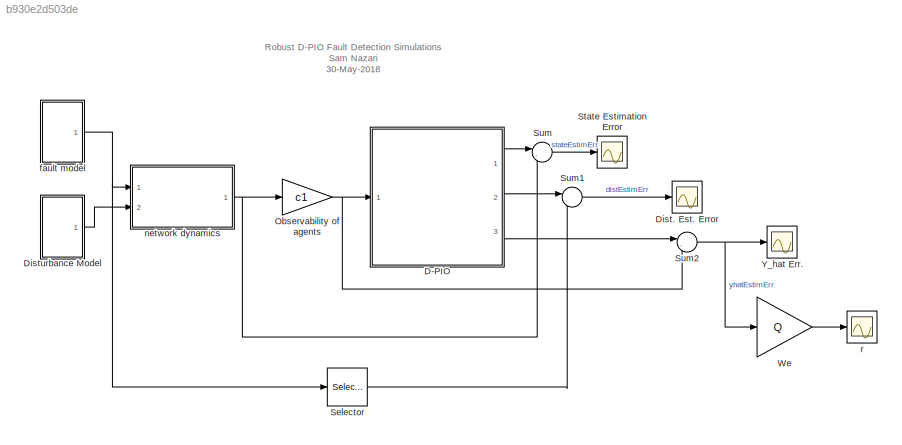
MODEL slx_b930e2d503de
KIND model
CONFIG AbsTol = auto
CONFIG EnableMultiTasking = on
CONFIG FixedStep = auto
CONFIG MaxStep = 10e-5
CONFIG MinStep = auto
CONFIG RelTol = 1e-3
CONFIG SampleTimeConstraint = Unconstrained
CONFIG Solver = ode45
CONFIG SolverName = ode45
CONFIG StartTime = 0.0
CONFIG StopTime = TSIM
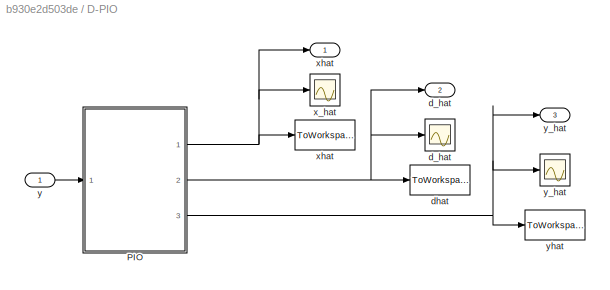
BLOCK [SubSystem] D-PIO
  Ports = [1, 3]
  RequestExecContextInheritance = off
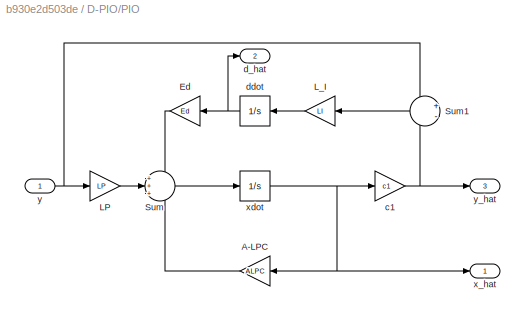
BLOCK [SubSystem] D-PIO/PIO
  Ports = [1, 3]
  RequestExecContextInheritance = off
BLOCK [Gain] D-PIO/PIO/A-LPC
  Gain = ALPC
  Multiplication = Matrix(K*u)
  OutDataTypeStr = Inherit: Inherit via internal rule
  ParamDataTypeStr = Inherit: Inherit via internal rule
  SaturateOnIntegerOverflow = off
BLOCK [Gain] D-PIO/PIO/Ed
  Gain = Ed
  Multiplication = Matrix(K*u)
  OutDataTypeStr = Inherit: Inherit via internal rule
  ParamDataTypeStr = Inherit: Inherit via internal rule
  SaturateOnIntegerOverflow = off
BLOCK [Gain] D-PIO/PIO/LP
  Gain = LP
  Multiplication = Matrix(K*u)
  OutDataTypeStr = Inherit: Inherit via internal rule
  ParamDataTypeStr = Inherit: Inherit via internal rule
  SaturateOnIntegerOverflow = off
BLOCK [Gain] D-PIO/PIO/L_I
  Gain = LI
  Multiplication = Matrix(K*u)
  OutDataTypeStr = Inherit: Inherit via internal rule
  ParamDataTypeStr = Inherit: Inherit via internal rule
  SaturateOnIntegerOverflow = off
BLOCK [Sum] D-PIO/PIO/Sum
  IconShape = round
  InputSameDT = off
  Inputs = +++
  OutDataTypeStr = Inherit: Inherit via internal rule
  Ports = [3, 1]
  SaturateOnIntegerOverflow = off
BLOCK [Sum] D-PIO/PIO/Sum1
  IconShape = round
  InputSameDT = off
  Inputs = +-
  OutDataTypeStr = Inherit: Inherit via internal rule
  Ports = [2, 1]
  SaturateOnIntegerOverflow = off
BLOCK [Gain] D-PIO/PIO/c1
  Gain = c1
  Multiplication = Matrix(K*u)
  OutDataTypeStr = Inherit: Inherit via internal rule
  ParamDataTypeStr = Inherit: Inherit via internal rule
  SaturateOnIntegerOverflow = off
BLOCK [Outport] D-PIO/PIO/d_hat
  IconDisplay = Port number
  Port = 2
BLOCK [Integrator] D-PIO/PIO/ddot
  InitialCondition = ddot0
  Ports = [1, 1]
BLOCK [Outport] D-PIO/PIO/x_hat
  IconDisplay = Port number
BLOCK [Integrator] D-PIO/PIO/xdot
  InitialCondition = xdot0
  Ports = [1, 1]
BLOCK [Inport] D-PIO/PIO/y
  IconDisplay = Port number
BLOCK [Outport] D-PIO/PIO/y_hat
  IconDisplay = Port number
  Port = 3
BLOCK [Scope] D-PIO/d_hat
  Floating = off
  NumInputPorts = 1
  Ports = [1]
  ScopeSpecificationString = Simulink.scopes.TimeScopeBlockCfg('CurrentConfiguration', extmgr.ConfigurationSet(extmgr.Configuration('Core','General UI',true),extmgr.Configuration('Core','Source UI',true),extmgr.Configuration('Sources','WiredSimulink',true,'DataLoggingVariableName','ScopeData2'),extmgr.Configuration('Visuals','Time Domain',true,'SerializedDisplays',{struct('MinYLimReal','-2.00585','MaxYLimReal','18.05264','YLa...<+1417ch>
BLOCK [Outport] D-PIO/d_hat 
  IconDisplay = Port number
  Port = 2
BLOCK [ToWorkspace] D-PIO/dhat
  FixptAsFi = on
  MaxDataPoints = inf
  Ports = [1]
  SampleTime = -1
  Save2DSignal = 3-D array (concatenate along third dimension)
  SaveFormat = Timeseries
  VariableName = dhat
BLOCK [Scope] D-PIO/x_hat 
  Floating = off
  NumInputPorts = 1
  Ports = [1]
  ScopeSpecificationString = Simulink.scopes.TimeScopeBlockCfg('CurrentConfiguration', extmgr.ConfigurationSet(extmgr.Configuration('Core','General UI',true),extmgr.Configuration('Core','Source UI',true),extmgr.Configuration('Sources','WiredSimulink',true,'DataLoggingVariableName','ScopeData1'),extmgr.Configuration('Visuals','Time Domain',true,'SerializedDisplays',{struct('MinYLimReal','-2.00314','MaxYLimReal','17.19994','YLa...<+1459ch>
BLOCK [ToWorkspace] D-PIO/xhat
  FixptAsFi = on
  MaxDataPoints = inf
  Ports = [1]
  SampleTime = -1
  Save2DSignal = 3-D array (concatenate along third dimension)
  SaveFormat = Timeseries
  VariableName = xhat
BLOCK [Outport] D-PIO/xhat 
  IconDisplay = Port number
BLOCK [Inport] D-PIO/y
  IconDisplay = Port number
BLOCK [Scope] D-PIO/y_hat
  Floating = off
  NumInputPorts = 1
  Ports = [1]
  ScopeSpecificationString = Simulink.scopes.TimeScopeBlockCfg('CurrentConfiguration', extmgr.ConfigurationSet(extmgr.Configuration('Core','General UI',true),extmgr.Configuration('Core','Source UI',true),extmgr.Configuration('Sources','WiredSimulink',true,'DataLoggingVariableName','ScopeData3'),extmgr.Configuration('Visuals','Time Domain',true,'SerializedDisplays',{struct('MinYLimReal','-2.00314','MaxYLimReal','17.19994','YLa...<+1390ch>
BLOCK [Outport] D-PIO/y_hat 
  IconDisplay = Port number
  Port = 3
BLOCK [ToWorkspace] D-PIO/yhat
  FixptAsFi = on
  MaxDataPoints = inf
  Ports = [1]
  SampleTime = -1
  Save2DSignal = 3-D array (concatenate along third dimension)
  SaveFormat = Timeseries
  VariableName = yhat
BLOCK [Scope] Dist. Est. Error
  Floating = off
  NumInputPorts = 1
  Ports = [1]
  ScopeSpecificationString = Simulink.scopes.TimeScopeBlockCfg('CurrentConfiguration', extmgr.ConfigurationSet(extmgr.Configuration('Core','General UI',true),extmgr.Configuration('Core','Source UI',true),extmgr.Configuration('Sources','WiredSimulink',true,'DataLoggingVariableName','distEstError','DataLoggingSaveFormat','Array'),extmgr.Configuration('Visuals','Time Domain',true,'SerializedDisplays',{struct('MinYLimReal','-6.13...<+1489ch>
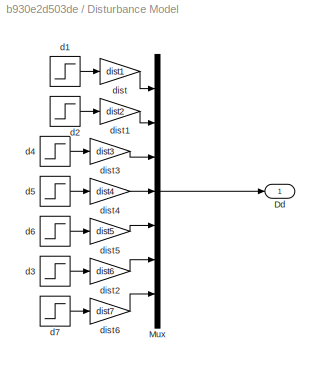
BLOCK [SubSystem] Disturbance Model
  Ports = [0, 1]
  RequestExecContextInheritance = off
BLOCK [Outport] Disturbance Model/Dd
  IconDisplay = Port number
BLOCK [Mux] Disturbance Model/Mux
  DisplayOption = bar
  Inputs = 7
  Ports = [7, 1]
BLOCK [Step] Disturbance Model/d1
  After = d1Val
  SampleTime = dt1
BLOCK [Step] Disturbance Model/d2
  After = d2Val
  SampleTime = dt2
BLOCK [Step] Disturbance Model/d3
  After = d6Val
  SampleTime = dt6
BLOCK [Step] Disturbance Model/d4
  After = d3Val
  SampleTime = dt3
BLOCK [Step] Disturbance Model/d5
  After = d4Val
  SampleTime = dt4
BLOCK [Step] Disturbance Model/d6
  After = d5Val
  SampleTime = dt5
BLOCK [Step] Disturbance Model/d7
  After = d7Val
  SampleTime = dt7
BLOCK [Gain] Disturbance Model/dist
  Gain = dist1
  Multiplication = Matrix(K*u)
  OutDataTypeStr = Inherit: Inherit via internal rule
  ParamDataTypeStr = Inherit: Inherit via internal rule
  SaturateOnIntegerOverflow = off
BLOCK [Gain] Disturbance Model/dist1
  Gain = dist2
  Multiplication = Matrix(K*u)
  OutDataTypeStr = Inherit: Inherit via internal rule
  ParamDataTypeStr = Inherit: Inherit via internal rule
  SaturateOnIntegerOverflow = off
BLOCK [Gain] Disturbance Model/dist2
  Gain = dist6
  Multiplication = Matrix(K*u)
  OutDataTypeStr = Inherit: Inherit via internal rule
  ParamDataTypeStr = Inherit: Inherit via internal rule
  SaturateOnIntegerOverflow = off
BLOCK [Gain] Disturbance Model/dist3
  Gain = dist3
  Multiplication = Matrix(K*u)
  OutDataTypeStr = Inherit: Inherit via internal rule
  ParamDataTypeStr = Inherit: Inherit via internal rule
  SaturateOnIntegerOverflow = off
BLOCK [Gain] Disturbance Model/dist4
  Gain = dist4
  Multiplication = Matrix(K*u)
  OutDataTypeStr = Inherit: Inherit via internal rule
  ParamDataTypeStr = Inherit: Inherit via internal rule
  SaturateOnIntegerOverflow = off
BLOCK [Gain] Disturbance Model/dist5
  Gain = dist5
  Multiplication = Matrix(K*u)
  OutDataTypeStr = Inherit: Inherit via internal rule
  ParamDataTypeStr = Inherit: Inherit via internal rule
  SaturateOnIntegerOverflow = off
BLOCK [Gain] Disturbance Model/dist6
  Gain = dist7
  Multiplication = Matrix(K*u)
  OutDataTypeStr = Inherit: Inherit via internal rule
  ParamDataTypeStr = Inherit: Inherit via internal rule
  SaturateOnIntegerOverflow = off
BLOCK [Gain] Observability of agents 
  Gain = c1
  Multiplication = Matrix(K*u)
  OutDataTypeStr = Inherit: Inherit via internal rule
  ParamDataTypeStr = Inherit: Inherit via internal rule
  SaturateOnIntegerOverflow = off
BLOCK [Selector] Selector
  IndexOptions = Index vector (dialog)
  Indices = [2 3 4]
  InputPortWidth = 7
  OutputSizes = 1
  Ports = [1, 1]
BLOCK [Scope] State Estimation Error
  Floating = off
  NumInputPorts = 1
  Ports = [1]
  ScopeSpecificationString = Simulink.scopes.TimeScopeBlockCfg('CurrentConfiguration', extmgr.ConfigurationSet(extmgr.Configuration('Core','General UI',true),extmgr.Configuration('Core','Source UI',true),extmgr.Configuration('Sources','WiredSimulink',true,'DataLoggingVariableName','stateEstimErr','DataLoggingSaveFormat','Array'),extmgr.Configuration('Visuals','Time Domain',true,'SerializedDisplays',{struct('MinYLimReal','-1.9...<+1615ch>
BLOCK [Sum] Sum
  IconShape = round
  InputSameDT = off
  Inputs = |-+
  OutDataTypeStr = Inherit: Inherit via internal rule
  Ports = [2, 1]
  SaturateOnIntegerOverflow = off
BLOCK [Sum] Sum1
  IconShape = round
  InputSameDT = off
  Inputs = |-+
  OutDataTypeStr = Inherit: Inherit via internal rule
  Ports = [2, 1]
  SaturateOnIntegerOverflow = off
BLOCK [Sum] Sum2
  IconShape = round
  InputSameDT = off
  Inputs = |-+
  OutDataTypeStr = Inherit: Inherit via internal rule
  Ports = [2, 1]
  SaturateOnIntegerOverflow = off
BLOCK [Gain] We
  Gain = Q
  Multiplication = Matrix(K*u)
  OutDataTypeStr = Inherit: Inherit via internal rule
  ParamDataTypeStr = Inherit: Inherit via internal rule
  SaturateOnIntegerOverflow = off
BLOCK [Scope] Y_hat Err.
  Floating = off
  NumInputPorts = 1
  Ports = [1]
  ScopeSpecificationString = Simulink.scopes.TimeScopeBlockCfg('CurrentConfiguration', extmgr.ConfigurationSet(extmgr.Configuration('Core','General UI',true),extmgr.Configuration('Core','Source UI',true),extmgr.Configuration('Sources','WiredSimulink',true,'DataLoggingVariableName','yhatEstErr','DataLoggingSaveFormat','Array'),extmgr.Configuration('Visuals','Time Domain',true,'SerializedDisplays',{struct('MinYLimReal','-2.0013...<+1510ch>
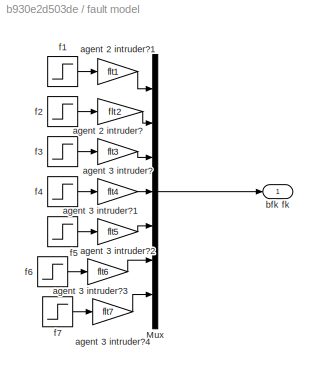
BLOCK [SubSystem] fault model
  Ports = [0, 1]
  RequestExecContextInheritance = off
BLOCK [Mux] fault model/Mux
  DisplayOption = bar
  Inputs = 7
  Ports = [7, 1]
BLOCK [Gain] fault model/agent 2 intruder?
  Gain = flt2
  Multiplication = Matrix(K*u)
  OutDataTypeStr = Inherit: Inherit via internal rule
  ParamDataTypeStr = Inherit: Inherit via internal rule
  SaturateOnIntegerOverflow = off
BLOCK [Gain] fault model/agent 2 intruder?1
  Gain = flt1
  Multiplication = Matrix(K*u)
  OutDataTypeStr = Inherit: Inherit via internal rule
  ParamDataTypeStr = Inherit: Inherit via internal rule
  SaturateOnIntegerOverflow = off
BLOCK [Gain] fault model/agent 3 intruder?
  Gain = flt3
  OutDataTypeStr = Inherit: Inherit via internal rule
  ParamDataTypeStr = Inherit: Inherit via internal rule
  SaturateOnIntegerOverflow = off
BLOCK [Gain] fault model/agent 3 intruder?1
  Gain = flt4
  OutDataTypeStr = Inherit: Inherit via internal rule
  ParamDataTypeStr = Inherit: Inherit via internal rule
  SaturateOnIntegerOverflow = off
BLOCK [Gain] fault model/agent 3 intruder?2
  Gain = flt5
  OutDataTypeStr = Inherit: Inherit via internal rule
  ParamDataTypeStr = Inherit: Inherit via internal rule
  SaturateOnIntegerOverflow = off
BLOCK [Gain] fault model/agent 3 intruder?3
  Gain = flt6
  OutDataTypeStr = Inherit: Inherit via internal rule
  ParamDataTypeStr = Inherit: Inherit via internal rule
  SaturateOnIntegerOverflow = off
BLOCK [Gain] fault model/agent 3 intruder?4
  Gain = flt7
  OutDataTypeStr = Inherit: Inherit via internal rule
  ParamDataTypeStr = Inherit: Inherit via internal rule
  SaturateOnIntegerOverflow = off
BLOCK [Outport] fault model/bfk fk
  IconDisplay = Port number
BLOCK [Step] fault model/f1
  After = f1Val
  SampleTime = tf1
BLOCK [Step] fault model/f2
  After = f2Val
  SampleTime = tf2
BLOCK [Step] fault model/f3
  After = f3Val
  SampleTime = tf3
BLOCK [Step] fault model/f4
  After = f4Val
  SampleTime = tf4
BLOCK [Step] fault model/f5
  After = f5Val
  SampleTime = tf5
BLOCK [Step] fault model/f6
  After = f6Val
  SampleTime = tf6
BLOCK [Step] fault model/f7
  After = f7Val
  SampleTime = tf7
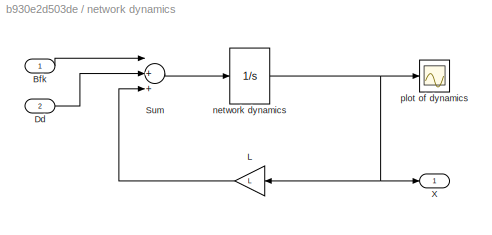
BLOCK [SubSystem] network dynamics
  Ports = [2, 1]
  RequestExecContextInheritance = off
BLOCK [Inport] network dynamics/Bfk
  IconDisplay = Port number
BLOCK [Inport] network dynamics/Dd
  IconDisplay = Port number
  Port = 2
BLOCK [Gain] network dynamics/L
  Gain = L
  Multiplication = Matrix(K*u)
  OutDataTypeStr = Inherit: Inherit via internal rule
  ParamDataTypeStr = Inherit: Inherit via internal rule
  SaturateOnIntegerOverflow = off
BLOCK [Sum] network dynamics/Sum
  InputSameDT = off
  Inputs = |++-
  OutDataTypeStr = Inherit: Inherit via internal rule
  Ports = [3, 1]
  SaturateOnIntegerOverflow = off
BLOCK [Outport] network dynamics/X
  IconDisplay = Port number
BLOCK [Integrator] network dynamics/network dynamics
  InitialCondition = x0
  Ports = [1, 1]
BLOCK [Scope] network dynamics/plot of dynamics
  Floating = off
  NumInputPorts = 1
  Ports = [1]
  ScopeSpecificationString = Simulink.scopes.TimeScopeBlockCfg('CurrentConfiguration', extmgr.ConfigurationSet(extmgr.Configuration('Core','General UI',true),extmgr.Configuration('Core','Source UI',true),extmgr.Configuration('Sources','WiredSimulink',true,'DataLoggingSaveFormat','StructureWithTime','DataLoggingDecimation','1','DataLoggingDecimateData',true),extmgr.Configuration('Visuals','Time Domain',true,'SerializedDisplays...<+1792ch>
BLOCK [Scope] r
  Floating = off
  NumInputPorts = 1
  Ports = [1]
  ScopeSpecificationString = Simulink.scopes.TimeScopeBlockCfg('CurrentConfiguration', extmgr.ConfigurationSet(extmgr.Configuration('Core','General UI',true),extmgr.Configuration('Core','Source UI',true),extmgr.Configuration('Sources','WiredSimulink',true,'DataLoggingVariableName','ScopeData1','DataLoggingSaveFormat','Array'),extmgr.Configuration('Visuals','Time Domain',true,'SerializedDisplays',{struct('MinYLimReal','-2.0013...<+1462ch>
ANNOTATION (root): Robust D-PIO Fault Detection Simulations Sam Nazari 30-May-2018
LINE D-PIO/PIO/A-LPC:1 -> D-PIO/PIO/Sum:3
LINE D-PIO/PIO/Ed:1 -> D-PIO/PIO/Sum:1
LINE D-PIO/PIO/LP:1 -> D-PIO/PIO/Sum:2
LINE D-PIO/PIO/L_I:1 -> D-PIO/PIO/ddot:1
LINE D-PIO/PIO/Sum1:1 -> D-PIO/PIO/L_I:1
LINE D-PIO/PIO/Sum:1 -> D-PIO/PIO/xdot:1
NET D-PIO/PIO/c1:1 -> D-PIO/PIO/Sum1:2, D-PIO/PIO/y_hat:1
NET D-PIO/PIO/ddot:1 -> D-PIO/PIO/Ed:1, D-PIO/PIO/d_hat:1
NET D-PIO/PIO/xdot:1 -> D-PIO/PIO/A-LPC:1, D-PIO/PIO/c1:1, D-PIO/PIO/x_hat:1
NET D-PIO/PIO/y:1 -> D-PIO/PIO/LP:1, D-PIO/PIO/Sum1:1
NET D-PIO/PIO:1 -> D-PIO/x_hat :1, D-PIO/xhat :1, D-PIO/xhat:1
NET D-PIO/PIO:2 -> D-PIO/d_hat :1, D-PIO/d_hat:1, D-PIO/dhat:1
NET D-PIO/PIO:3 -> D-PIO/y_hat :1, D-PIO/y_hat:1, D-PIO/yhat:1
LINE D-PIO/y:1 -> D-PIO/PIO:1
LINE D-PIO:1 -> Sum:1
LINE D-PIO:2 -> Sum1:1
LINE D-PIO:3 -> Sum2:1
LINE Disturbance Model/Mux:1 -> Disturbance Model/Dd:1
LINE Disturbance Model/d1:1 -> Disturbance Model/dist:1
LINE Disturbance Model/d2:1 -> Disturbance Model/dist1:1
LINE Disturbance Model/d3:1 -> Disturbance Model/dist2:1
LINE Disturbance Model/d4:1 -> Disturbance Model/dist3:1
LINE Disturbance Model/d5:1 -> Disturbance Model/dist4:1
LINE Disturbance Model/d6:1 -> Disturbance Model/dist5:1
LINE Disturbance Model/d7:1 -> Disturbance Model/dist6:1
LINE Disturbance Model/dist1:1 -> Disturbance Model/Mux:2
LINE Disturbance Model/dist2:1 -> Disturbance Model/Mux:6
LINE Disturbance Model/dist3:1 -> Disturbance Model/Mux:3
LINE Disturbance Model/dist4:1 -> Disturbance Model/Mux:4
LINE Disturbance Model/dist5:1 -> Disturbance Model/Mux:5
LINE Disturbance Model/dist6:1 -> Disturbance Model/Mux:7
LINE Disturbance Model/dist:1 -> Disturbance Model/Mux:1
LINE Disturbance Model:1 -> network dynamics:2
NET Observability of agents :1 -> D-PIO:1, Sum2:2
LINE Selector:1 -> Sum1:2
LINE Sum1:1 -> Dist. Est. Error:1
NET Sum2:1 -> We:1, Y_hat Err.:1
LINE Sum:1 -> State Estimation Error:1
LINE We:1 -> r:1
LINE fault model/Mux:1 -> fault model/bfk fk:1
LINE fault model/agent 2 intruder?1:1 -> fault model/Mux:1
LINE fault model/agent 2 intruder?:1 -> fault model/Mux:2
LINE fault model/agent 3 intruder?1:1 -> fault model/Mux:4
LINE fault model/agent 3 intruder?2:1 -> fault model/Mux:5
LINE fault model/agent 3 intruder?3:1 -> fault model/Mux:6
LINE fault model/agent 3 intruder?4:1 -> fault model/Mux:7
LINE fault model/agent 3 intruder?:1 -> fault model/Mux:3
LINE fault model/f1:1 -> fault model/agent 2 intruder?1:1
LINE fault model/f2:1 -> fault model/agent 2 intruder?:1
LINE fault model/f3:1 -> fault model/agent 3 intruder?:1
LINE fault model/f4:1 -> fault model/agent 3 intruder?1:1
LINE fault model/f5:1 -> fault model/agent 3 intruder?2:1
LINE fault model/f6:1 -> fault model/agent 3 intruder?3:1
LINE fault model/f7:1 -> fault model/agent 3 intruder?4:1
NET fault model:1 -> Selector:1, network dynamics:1
LINE network dynamics/Bfk:1 -> network dynamics/Sum:1
LINE network dynamics/Dd:1 -> network dynamics/Sum:2
LINE network dynamics/L:1 -> network dynamics/Sum:3
LINE network dynamics/Sum:1 -> network dynamics/network dynamics:1
NET network dynamics/network dynamics:1 -> network dynamics/L:1, network dynamics/X:1, network dynamics/plot of dynamics:1
NET network dynamics:1 -> Observability of agents :1, Sum:2
note: NET lines group one-source signal fan-out (src -> all destinations, sorted); 1:1 wires keep LINE
